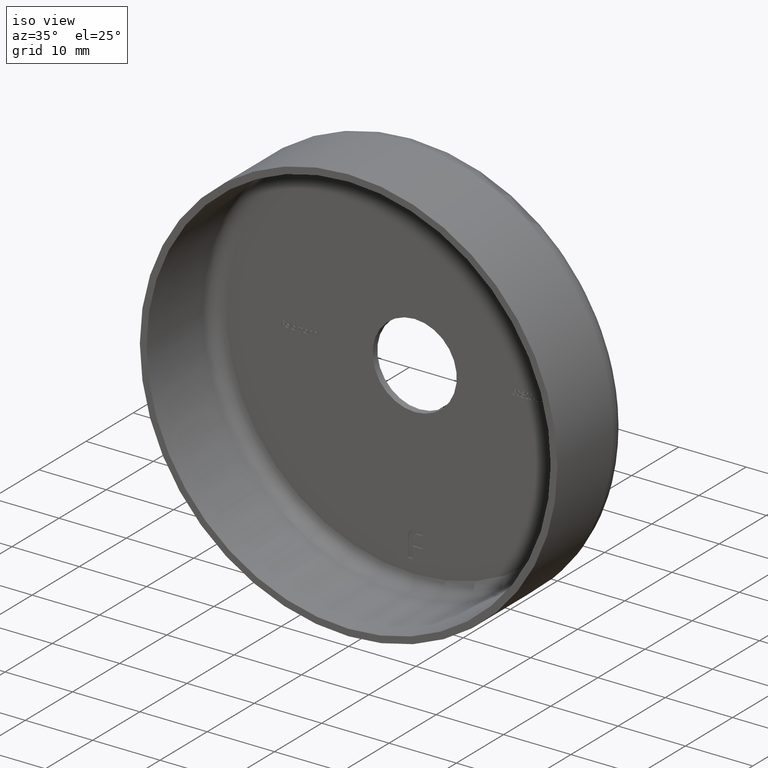
[diagram: clean part render]
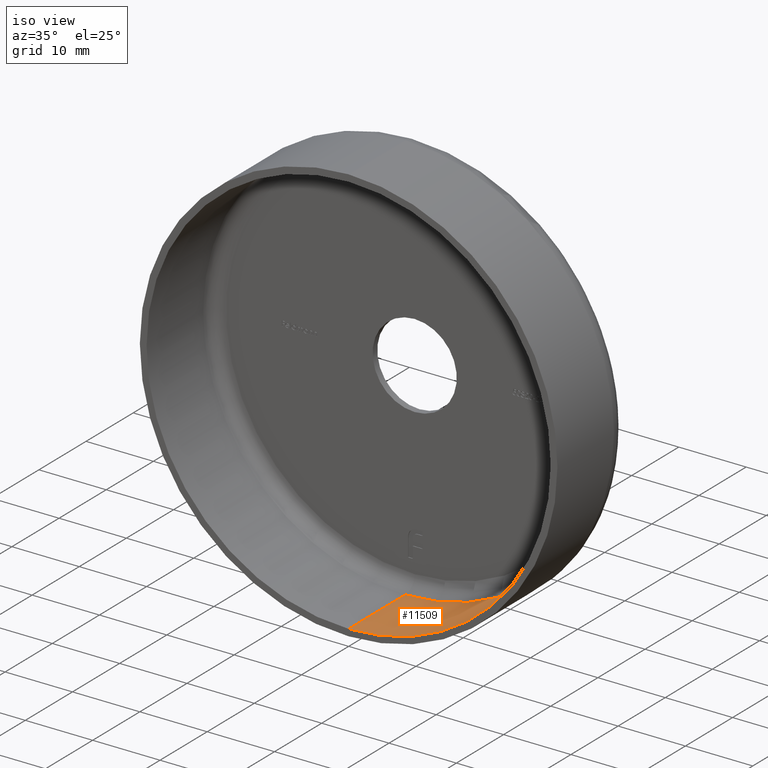
[diagram: same view with one face highlighted and labeled with its STEP entity id]
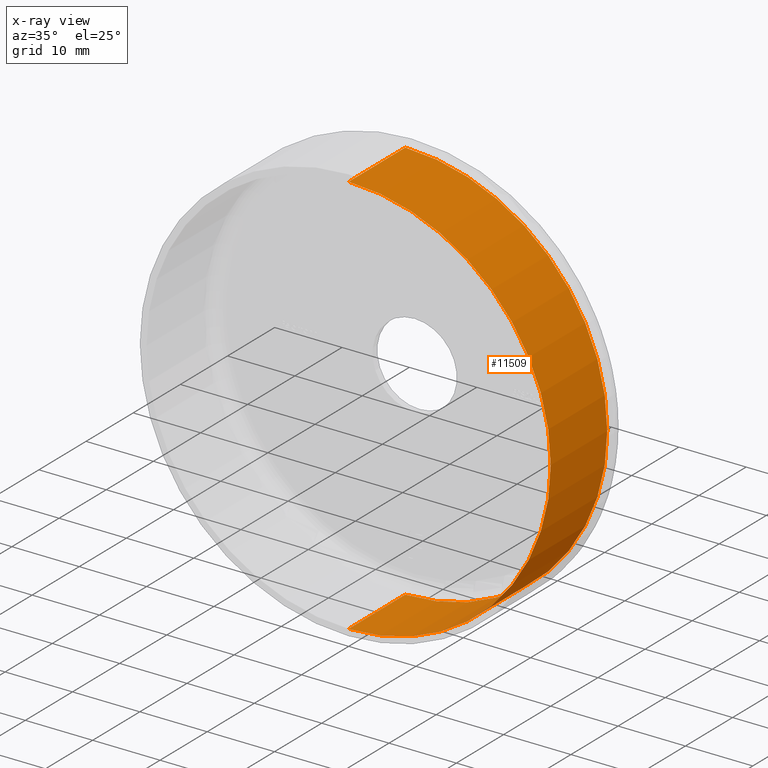
[diagram: x-ray of the same camera — body ghosted, the highlighted face saturated]
A machine part, iso view. The second image highlights one B-rep face of the part: STEP entity #11509.
The next image is the same camera in x-ray: the body ghosted, the highlighted face saturated — about 0% of this face is hidden behind the body in this view.
In plain terms, the highlighted cylindrical surface (partial cylindrical patch) has radius 30 mm, axis along (-0, -1, -0).
Its self-contained STEP definition (entity closure, byte-faithful):
#604 = EDGE_CURVE ( 'NONE', #16326, #5320, #9536, .T. ) ;
#1613 = ORIENTED_EDGE ( 'NONE', *, *, #13014, .T. ) ;
#2125 = CIRCLE ( 'NONE', #11332, 30.00000000000000000 ) ;
#2286 = CARTESIAN_POINT ( 'NONE',  ( 0.000000000000000000, 12.00000000000000000, -30.00000000000000000 ) ) ;
#3191 = CARTESIAN_POINT ( 'NONE',  ( 0.000000000000000000, 0.000000000000000000, 0.000000000000000000 ) ) ;
#3941 = EDGE_LOOP ( 'NONE', ( #16216, #5041, #1613, #8347 ) ) ;
#3998 = LINE ( 'NONE', #7506, #7084 ) ;
#5041 = ORIENTED_EDGE ( 'NONE', *, *, #6356, .F. ) ;
#5320 = VERTEX_POINT ( 'NONE', #15284 ) ;
#5513 = VECTOR ( 'NONE', #16053, 1000.000000000000000 ) ;
#6151 = EDGE_CURVE ( 'NONE', #6825, #5320, #3998, .T. ) ;
#6190 = CYLINDRICAL_SURFACE ( 'NONE', #16333, 30.00000000000000000 ) ;
#6356 = EDGE_CURVE ( 'NONE', #10883, #6825, #2125, .T. ) ;
#6825 = VERTEX_POINT ( 'NONE', #9738 ) ;
#7084 = VECTOR ( 'NONE', #14191, 1000.000000000000000 ) ;
#7455 = CARTESIAN_POINT ( 'NONE',  ( 0.000000000000000000, -1.224646799147353207E-16, 0.000000000000000000 ) ) ;
#7506 = CARTESIAN_POINT ( 'NONE',  ( 3.673940397442059178E-15, 0.000000000000000000, 30.00000000000000000 ) ) ;
#8131 = CARTESIAN_POINT ( 'NONE',  ( 0.000000000000000000, 12.00000000000000000, 0.000000000000000000 ) ) ;
#8240 = DIRECTION ( 'NONE',  ( -0.000000000000000000, -1.000000000000000000, -0.000000000000000000 ) ) ;
#8347 = ORIENTED_EDGE ( 'NONE', *, *, #604, .T. ) ;
#8361 = DIRECTION ( 'NONE',  ( 0.000000000000000000, 0.000000000000000000, -1.000000000000000000 ) ) ;
#8817 = DIRECTION ( 'NONE',  ( -0.000000000000000000, -1.000000000000000000, -0.000000000000000000 ) ) ;
#8889 = CARTESIAN_POINT ( 'NONE',  ( 0.000000000000000000, -1.224646799147353207E-16, -30.00000000000000000 ) ) ;
#9536 = CIRCLE ( 'NONE', #11858, 30.00000000000000000 ) ;
#9738 = CARTESIAN_POINT ( 'NONE',  ( 3.673940397442059178E-15, 12.00000000000000000, 30.00000000000000000 ) ) ;
#10883 = VERTEX_POINT ( 'NONE', #2286 ) ;
#11332 = AXIS2_PLACEMENT_3D ( 'NONE', #8131, #8240, #8361 ) ;
#11509 = ADVANCED_FACE ( 'NONE', ( #12017 ), #6190, .F. ) ;
#11858 = AXIS2_PLACEMENT_3D ( 'NONE', #7455, #8817, #15361 ) ;
#12017 = FACE_OUTER_BOUND ( 'NONE', #3941, .T. ) ;
#13014 = EDGE_CURVE ( 'NONE', #10883, #16326, #14282, .T. ) ;
#14191 = DIRECTION ( 'NONE',  ( -0.000000000000000000, -1.000000000000000000, -0.000000000000000000 ) ) ;
#14282 = LINE ( 'NONE', #17117, #5513 ) ;
#15284 = CARTESIAN_POINT ( 'NONE',  ( 3.673940397442059178E-15, -1.224646799147353207E-16, 30.00000000000000000 ) ) ;
#15361 = DIRECTION ( 'NONE',  ( 0.000000000000000000, 0.000000000000000000, -1.000000000000000000 ) ) ;
#16053 = DIRECTION ( 'NONE',  ( -0.000000000000000000, -1.000000000000000000, -0.000000000000000000 ) ) ;
#16216 = ORIENTED_EDGE ( 'NONE', *, *, #6151, .F. ) ;
#16298 = DIRECTION ( 'NONE',  ( 0.000000000000000000, 0.000000000000000000, -1.000000000000000000 ) ) ;
#16326 = VERTEX_POINT ( 'NONE', #8889 ) ;
#16333 = AXIS2_PLACEMENT_3D ( 'NONE', #3191, #16358, #16298 ) ;
#16358 = DIRECTION ( 'NONE',  ( -0.000000000000000000, -1.000000000000000000, -0.000000000000000000 ) ) ;
#17117 = CARTESIAN_POINT ( 'NONE',  ( 0.000000000000000000, 0.000000000000000000, -30.00000000000000000 ) ) ;